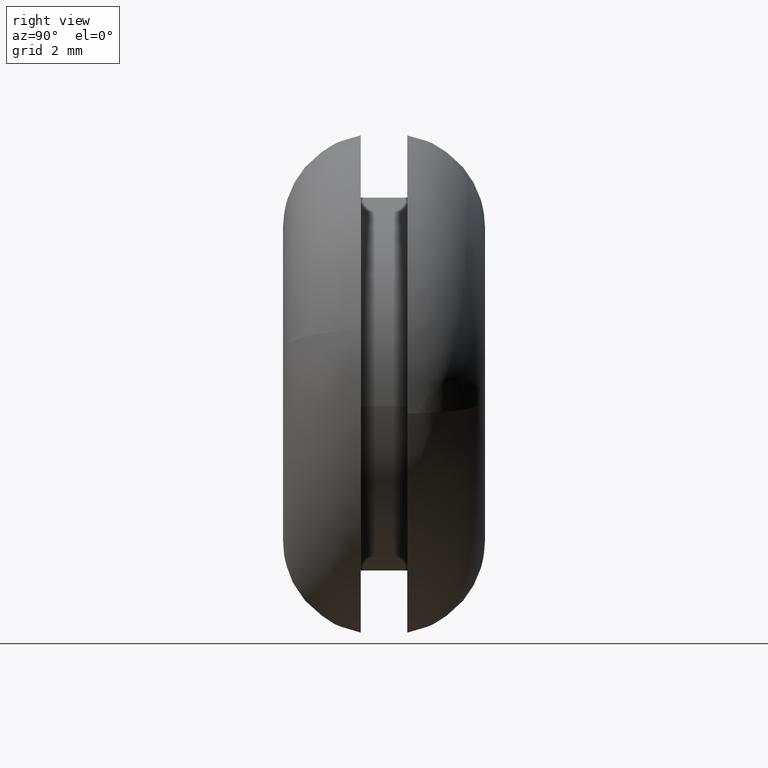
[diagram: clean part render]
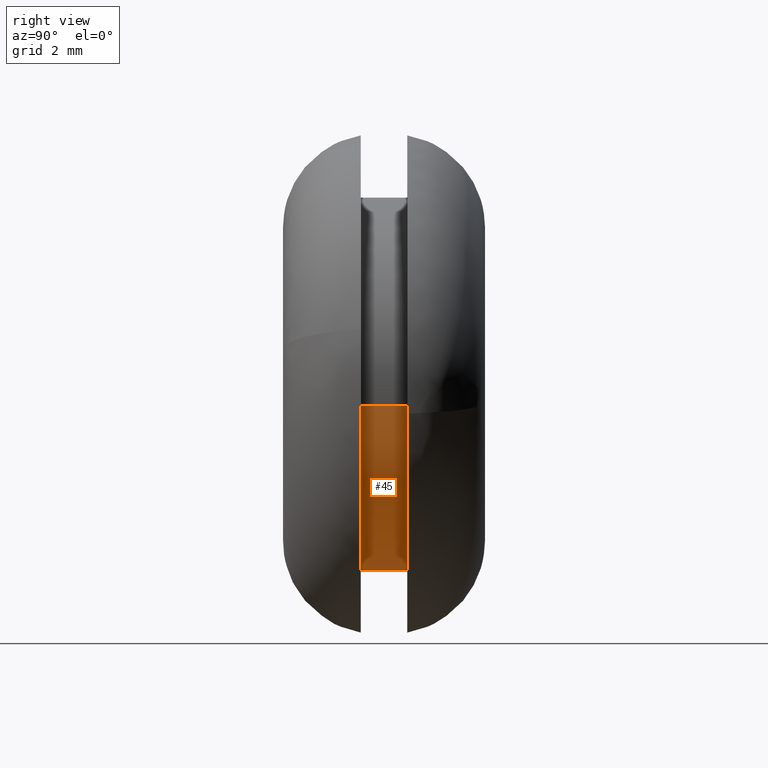
[diagram: same view with one face highlighted and labeled with its STEP entity id]
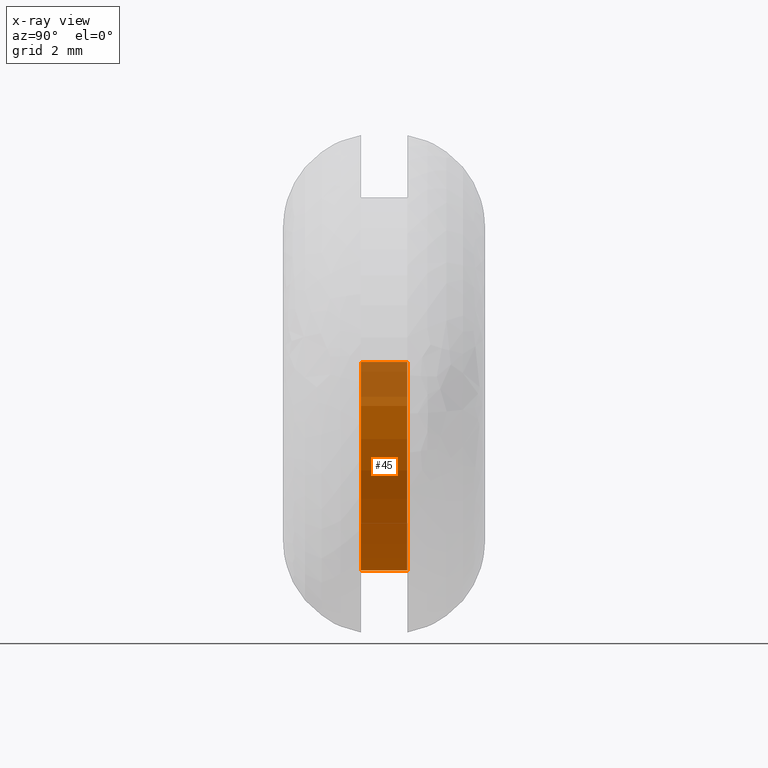
[diagram: x-ray of the same camera — body ghosted, the highlighted face saturated]
A machine part, right view. The second image highlights one B-rep face of the part: STEP entity #45.
The next image is the same camera in x-ray: the body ghosted, the highlighted face saturated — about 21% of this face is hidden behind the body in this view.
In plain terms, the highlighted cylindrical surface (partial cylindrical patch) has radius 6 mm, axis along (0, 1, 0).
Its self-contained STEP definition (entity closure, byte-faithful):
#45=ADVANCED_FACE('',(#107),#106,.T.);
#106=CYLINDRICAL_SURFACE('',#208,6.00000000000E+000);
#107=FACE_OUTER_BOUND('',#209,.T.);
#205=CARTESIAN_POINT('',(4.70539397474E-016,4.03750000000E+000,1.82735762207E-016));
#206=DIRECTION('',(1.41441697970E-016,1.00000000000E+000,1.81699675896E-015));
#207=DIRECTION('',(-9.93009526364E-001,-7.40148683083E-017,1.18034234657E-001));
#208=AXIS2_PLACEMENT_3D('',#205,#206,#207);
#209=EDGE_LOOP('',(#356,#357,#358,#359,#360,#361));
#356=ORIENTED_EDGE('',*,*,#415,.F.);
#357=ORIENTED_EDGE('',*,*,#417,.F.);
#358=ORIENTED_EDGE('',*,*,#424,.T.);
#359=ORIENTED_EDGE('',*,*,#401,.T.);
#360=ORIENTED_EDGE('',*,*,#403,.T.);
#361=ORIENTED_EDGE('',*,*,#425,.F.);
#401=EDGE_CURVE('',#467,#468,#469,.T.);
#403=EDGE_CURVE('',#468,#475,#482,.T.);
#415=EDGE_CURVE('',#565,#566,#567,.T.);
#417=EDGE_CURVE('',#573,#565,#580,.T.);
#424=EDGE_CURVE('',#573,#467,#628,.T.);
#425=EDGE_CURVE('',#566,#475,#634,.T.);
#467=VERTEX_POINT('',#701);
#468=VERTEX_POINT('',#702);
#469=CIRCLE('',#706,6.00000000000E+000);
#475=VERTEX_POINT('',#707);
#482=CIRCLE('',#715,6.00000000000E+000);
#565=VERTEX_POINT('',#771);
#566=VERTEX_POINT('',#772);
#567=CIRCLE('',#776,6.00000000000E+000);
#573=VERTEX_POINT('',#777);
#580=CIRCLE('',#785,6.00000000000E+000);
#628=(BOUNDED_CURVE() B_SPLINE_CURVE(1,(#816,#817),.UNSPECIFIED.,.F.,.F.) B_SPLINE_CURVE_WITH_KNOTS((2,2),(8.33333134656E-002,9.16666653270E-001),.UNSPECIFIED.) CURVE() GEOMETRIC_REPRESENTATION_ITEM() RATIONAL_B_SPLINE_CURVE((1.00000000000E+000,1.00000000000E+000)) REPRESENTATION_ITEM('') );
#634=(BOUNDED_CURVE() B_SPLINE_CURVE(1,(#818,#819),.UNSPECIFIED.,.F.,.F.) B_SPLINE_CURVE_WITH_KNOTS((2,2),(8.33333333335E-002,9.16666666667E-001),.UNSPECIFIED.) CURVE() GEOMETRIC_REPRESENTATION_ITEM() RATIONAL_B_SPLINE_CURVE((7.50000000000E-001,7.50000000000E-001)) REPRESENTATION_ITEM('') );
#701=CARTESIAN_POINT('',(-5.95805715818E+000,4.00000000000E+000,7.08205407903E-001));
#702=CARTESIAN_POINT('',(-2.22044604925E-015,4.00000000000E+000,-5.99999999999E+000));
#703=CARTESIAN_POINT('',(1.73239200763E-012,4.00000000000E+000,3.81339404498E-012));
#704=DIRECTION('',(0.00000000000E+000,-1.00000000000E+000,-0.00000000000E+000));
#705=DIRECTION('',(-2.88741253129E-013,0.00000000000E+000,-1.00000000000E+000));
#706=AXIS2_PLACEMENT_3D('',#703,#704,#705);
#707=CARTESIAN_POINT('',(5.95793466628E+000,4.00000000000E+000,-7.09235160062E-001));
#712=CARTESIAN_POINT('',(1.73239200763E-012,4.00000000000E+000,3.81339404498E-012));
#713=DIRECTION('',(0.00000000000E+000,-1.00000000000E+000,-0.00000000000E+000));
#714=DIRECTION('',(-2.88741253129E-013,0.00000000000E+000,-1.00000000000E+000));
#715=AXIS2_PLACEMENT_3D('',#712,#713,#714);
#771=CARTESIAN_POINT('',(-1.55431223448E-015,2.50000000000E+000,-5.99999999999E+000));
#772=CARTESIAN_POINT('',(5.95793466628E+000,2.50000000000E+000,-7.09235160062E-001));
#773=CARTESIAN_POINT('',(1.78168590992E-012,2.50000000000E+000,3.91464638483E-012));
#774=DIRECTION('',(4.50068612245E-015,-1.00000000000E+000,2.90851502930E-014));
#775=DIRECTION('',(-2.96818125634E-013,-2.90851502930E-014,-1.00000000000E+000));
#776=AXIS2_PLACEMENT_3D('',#773,#774,#775);
#777=CARTESIAN_POINT('',(-5.95805715818E+000,2.50000000000E+000,7.08205407903E-001));
#782=CARTESIAN_POINT('',(1.78168590992E-012,2.50000000000E+000,3.91464638483E-012));
#783=DIRECTION('',(4.50068612245E-015,-1.00000000000E+000,2.90851502930E-014));
#784=DIRECTION('',(-2.96818125634E-013,-2.90851502930E-014,-1.00000000000E+000));
#785=AXIS2_PLACEMENT_3D('',#782,#783,#784);
#816=CARTESIAN_POINT('',(-5.95805715818E+000,2.49999996424E+000,7.08205407941E-001));
#817=CARTESIAN_POINT('',(-5.95805715818E+000,3.99999997589E+000,7.08205407941E-001));
#818=CARTESIAN_POINT('',(5.95805715818E+000,2.50000000000E+000,-7.08205407941E-001));
#819=CARTESIAN_POINT('',(5.95805715818E+000,4.00000000000E+000,-7.08205407941E-001));